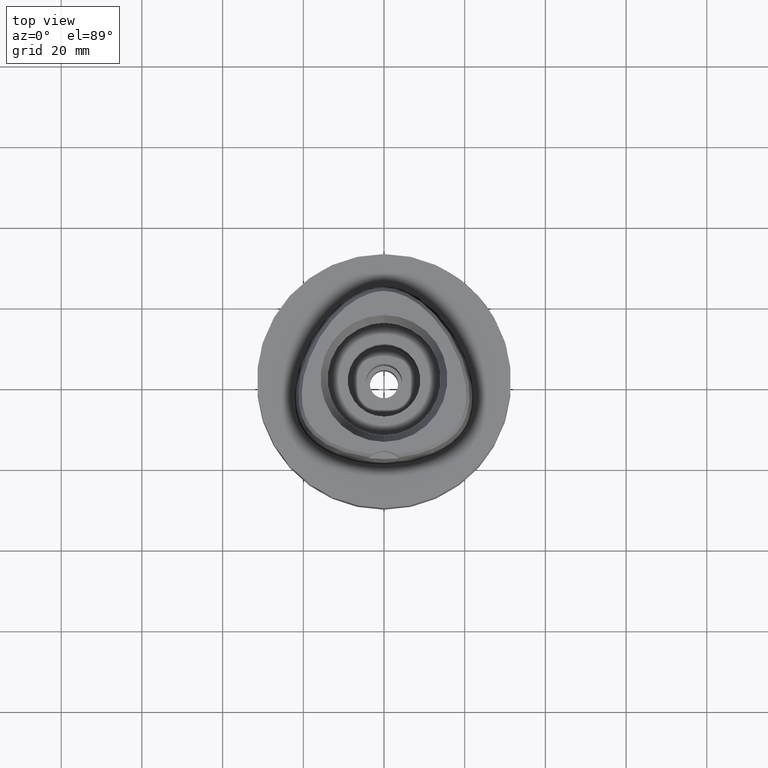
[diagram: clean part render]
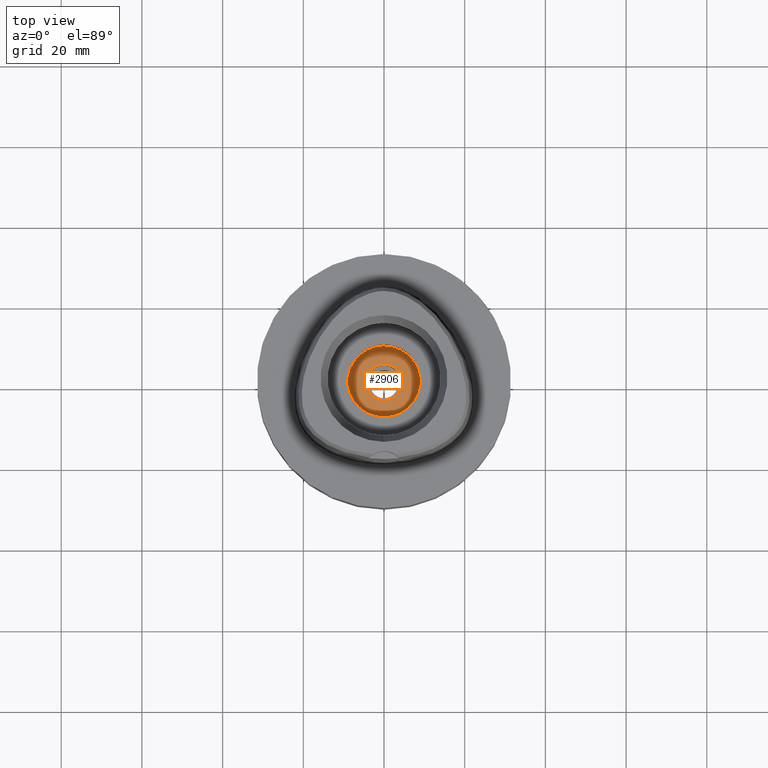
[diagram: same view with one face highlighted and labeled with its STEP entity id]
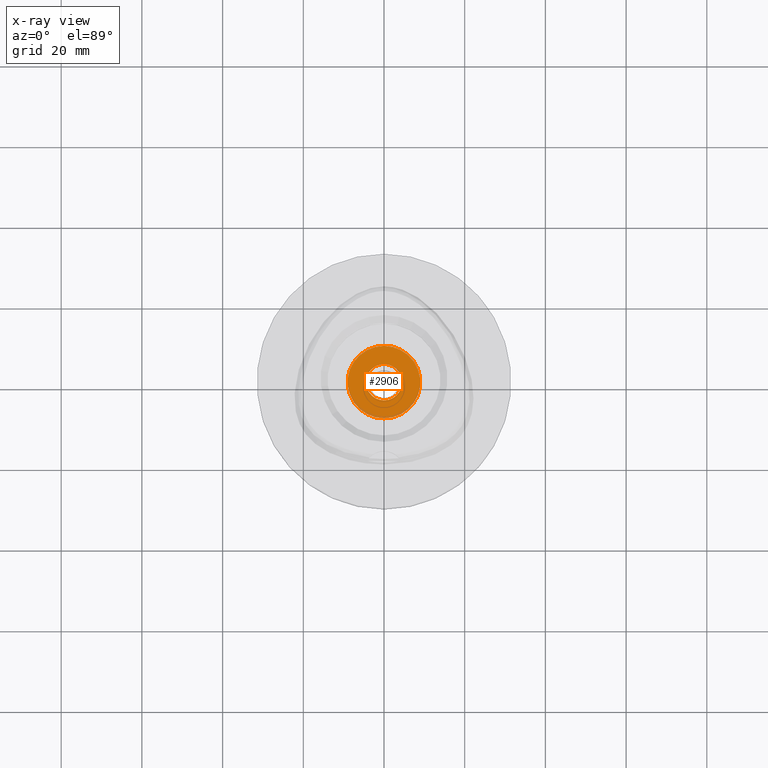
[diagram: x-ray of the same camera — body ghosted, the highlighted face saturated]
A machine part, top view. The second image highlights one B-rep face of the part: STEP entity #2906.
The next image is the same camera in x-ray: the body ghosted, the highlighted face saturated — about 4% of this face is hidden behind the body in this view.
In plain terms, the highlighted planar face has unit normal (0, 0, -1).
Its self-contained STEP definition (entity closure, byte-faithful):
#892=CARTESIAN_POINT('',(0.E0,0.E0,-1.6E1));
#893=DIRECTION('',(0.E0,0.E0,-1.E0));
#894=DIRECTION('',(0.E0,-1.E0,0.E0));
#895=AXIS2_PLACEMENT_3D('',#892,#893,#894);
#900=CARTESIAN_POINT('',(0.E0,0.E0,-1.6E1));
#901=DIRECTION('',(0.E0,0.E0,-1.E0));
#902=DIRECTION('',(0.E0,1.E0,0.E0));
#903=AXIS2_PLACEMENT_3D('',#900,#901,#902);
#908=CARTESIAN_POINT('',(0.E0,1.298125607096E-14,-1.6E1));
#909=DIRECTION('',(0.E0,0.E0,1.E0));
#910=DIRECTION('',(0.E0,-1.E0,0.E0));
#911=AXIS2_PLACEMENT_3D('',#908,#909,#910);
#916=CARTESIAN_POINT('',(0.E0,1.298125607096E-14,-1.6E1));
#917=DIRECTION('',(0.E0,0.E0,1.E0));
#918=DIRECTION('',(0.E0,1.E0,0.E0));
#919=AXIS2_PLACEMENT_3D('',#916,#917,#918);
#1720=CARTESIAN_POINT('',(0.E0,4.5E0,-1.6E1));
#1721=VERTEX_POINT('',#1720);
#1722=CARTESIAN_POINT('',(0.E0,-4.5E0,-1.6E1));
#1723=VERTEX_POINT('',#1722);
#1724=CARTESIAN_POINT('',(0.E0,-9.E0,-1.6E1));
#1725=CARTESIAN_POINT('',(0.E0,9.E0,-1.6E1));
#1726=VERTEX_POINT('',#1724);
#1727=VERTEX_POINT('',#1725);
#2891=CARTESIAN_POINT('',(0.E0,1.028703311284E-14,-1.6E1));
#2892=DIRECTION('',(0.E0,0.E0,-1.E0));
#2893=DIRECTION('',(0.E0,-1.E0,0.E0));
#2894=AXIS2_PLACEMENT_3D('',#2891,#2892,#2893);
#2895=PLANE('',#2894);
#2897=ORIENTED_EDGE('',*,*,#2896,.T.);
#2899=ORIENTED_EDGE('',*,*,#2898,.T.);
#2900=EDGE_LOOP('',(#2897,#2899));
#2901=FACE_OUTER_BOUND('',#2900,.F.);
#2902=ORIENTED_EDGE('',*,*,#2884,.T.);
#2903=ORIENTED_EDGE('',*,*,#2873,.T.);
#2904=EDGE_LOOP('',(#2902,#2903));
#2905=FACE_BOUND('',#2904,.F.);
#896=CIRCLE('',#895,9.E0);
#904=CIRCLE('',#903,9.E0);
#912=CIRCLE('',#911,4.5E0);
#920=CIRCLE('',#919,4.5E0);
#2873=EDGE_CURVE('',#1721,#1723,#920,.T.);
#2884=EDGE_CURVE('',#1723,#1721,#912,.T.);
#2896=EDGE_CURVE('',#1726,#1727,#896,.T.);
#2898=EDGE_CURVE('',#1727,#1726,#904,.T.);
#2906=ADVANCED_FACE('',(#2901,#2905),#2895,.F.);